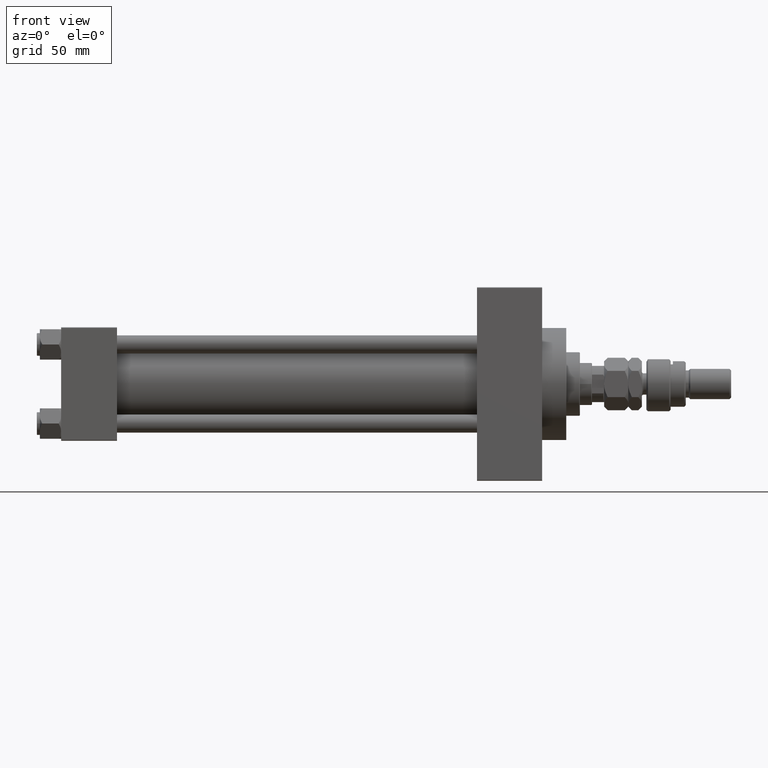
[diagram: clean part render]
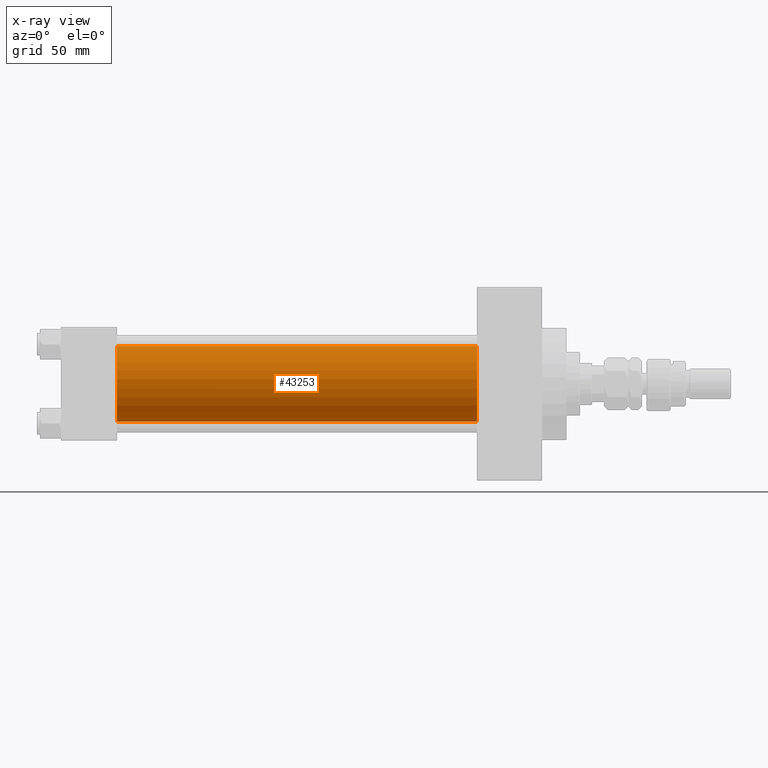
[diagram: x-ray — body ghosted, one internal face saturated and labeled with its STEP entity id]
A machine part, front view, then the same camera in x-ray: the body is ghosted and one INTERNAL B-rep face — a face not visible from any outside direction — is saturated and labeled: STEP entity #43253.
In plain terms, the highlighted cylindrical surface (partial cylindrical patch) has radius 25 mm, axis along (-1, -0, -0).
Its self-contained STEP definition (entity closure, byte-faithful):
#594 = EDGE_CURVE ( 'NONE', #36258, #8997, #6291, .T. ) ;
#1370 = AXIS2_PLACEMENT_3D ( 'NONE', #37416, #21805, #13614 ) ;
#4364 = EDGE_CURVE ( 'NONE', #8997, #32888, #5391, .T. ) ;
#5391 = LINE ( 'NONE', #29466, #32647 ) ;
#5670 = CYLINDRICAL_SURFACE ( 'NONE', #1370, 25.00000000000000000 ) ;
#6291 = CIRCLE ( 'NONE', #45995, 25.00000000000000000 ) ;
#7251 = CARTESIAN_POINT ( 'NONE',  ( 274.9999999999999432, 4.595317839031724996E-16, -25.00000000000000000 ) ) ;
#8284 = ORIENTED_EDGE ( 'NONE', *, *, #18746, .F. ) ;
#8997 = VERTEX_POINT ( 'NONE', #7251 ) ;
#10828 = CARTESIAN_POINT ( 'NONE',  ( 37.00000000000000000, -2.602085213965210642E-15, 25.00000000000000000 ) ) ;
#11692 = CIRCLE ( 'NONE', #13401, 25.00000000000000000 ) ;
#13401 = AXIS2_PLACEMENT_3D ( 'NONE', #47198, #42700, #50134 ) ;
#13614 = DIRECTION ( 'NONE',  ( 0.000000000000000000, 0.000000000000000000, 1.000000000000000000 ) ) ;
#13813 = CARTESIAN_POINT ( 'NONE',  ( 274.9999999999999432, -2.602085213965210642E-15, 25.00000000000000000 ) ) ;
#13872 = FACE_OUTER_BOUND ( 'NONE', #41852, .T. ) ;
#14008 = DIRECTION ( 'NONE',  ( 1.000000000000000000, 0.000000000000000000, 0.000000000000000000 ) ) ;
#14653 = VECTOR ( 'NONE', #38404, 1000.000000000000000 ) ;
#16120 = CARTESIAN_POINT ( 'NONE',  ( 37.00000000000000000, 4.595317839031724996E-16, -25.00000000000000000 ) ) ;
#17774 = LINE ( 'NONE', #13813, #14653 ) ;
#18746 = EDGE_CURVE ( 'NONE', #36258, #30021, #17774, .T. ) ;
#19481 = EDGE_CURVE ( 'NONE', #30021, #32888, #11692, .T. ) ;
#19655 = ORIENTED_EDGE ( 'NONE', *, *, #4364, .T. ) ;
#20904 = DIRECTION ( 'NONE',  ( 0.000000000000000000, 0.000000000000000000, -1.000000000000000000 ) ) ;
#21805 = DIRECTION ( 'NONE',  ( -1.000000000000000000, -0.000000000000000000, -0.000000000000000000 ) ) ;
#24990 = ORIENTED_EDGE ( 'NONE', *, *, #594, .T. ) ;
#29196 = DIRECTION ( 'NONE',  ( -1.000000000000000000, -0.000000000000000000, -0.000000000000000000 ) ) ;
#29466 = CARTESIAN_POINT ( 'NONE',  ( 274.9999999999999432, 4.595317839031724996E-16, -25.00000000000000000 ) ) ;
#30021 = VERTEX_POINT ( 'NONE', #10828 ) ;
#32485 = CARTESIAN_POINT ( 'NONE',  ( 274.9999999999999432, -2.602085213965210642E-15, 25.00000000000000000 ) ) ;
#32647 = VECTOR ( 'NONE', #29196, 1000.000000000000000 ) ;
#32888 = VERTEX_POINT ( 'NONE', #16120 ) ;
#36258 = VERTEX_POINT ( 'NONE', #32485 ) ;
#37416 = CARTESIAN_POINT ( 'NONE',  ( 274.9999999999999432, -2.602085213965210642E-15, 0.000000000000000000 ) ) ;
#38404 = DIRECTION ( 'NONE',  ( -1.000000000000000000, -0.000000000000000000, -0.000000000000000000 ) ) ;
#41384 = ORIENTED_EDGE ( 'NONE', *, *, #19481, .F. ) ;
#41852 = EDGE_LOOP ( 'NONE', ( #24990, #19655, #41384, #8284 ) ) ;
#42700 = DIRECTION ( 'NONE',  ( 1.000000000000000000, 0.000000000000000000, 0.000000000000000000 ) ) ;
#43253 = ADVANCED_FACE ( 'NONE', ( #13872 ), #5670, .F. ) ;
#45995 = AXIS2_PLACEMENT_3D ( 'NONE', #50266, #14008, #20904 ) ;
#47198 = CARTESIAN_POINT ( 'NONE',  ( 37.00000000000000000, -2.602085213965210642E-15, 0.000000000000000000 ) ) ;
#50134 = DIRECTION ( 'NONE',  ( 0.000000000000000000, 0.000000000000000000, -1.000000000000000000 ) ) ;
#50266 = CARTESIAN_POINT ( 'NONE',  ( 274.9999999999999432, -2.602085213965210642E-15, 0.000000000000000000 ) ) ;